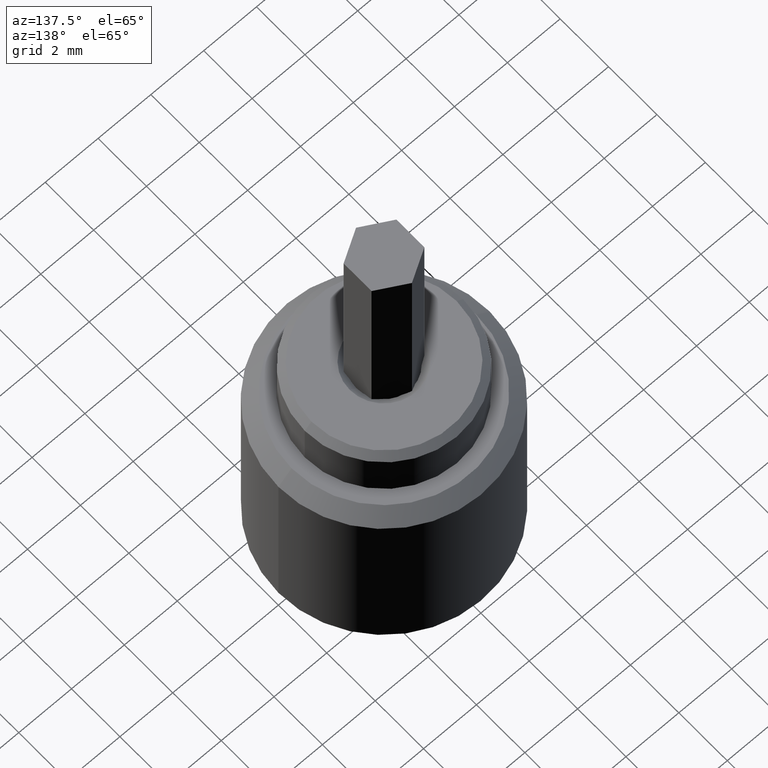
[diagram: clean part render]
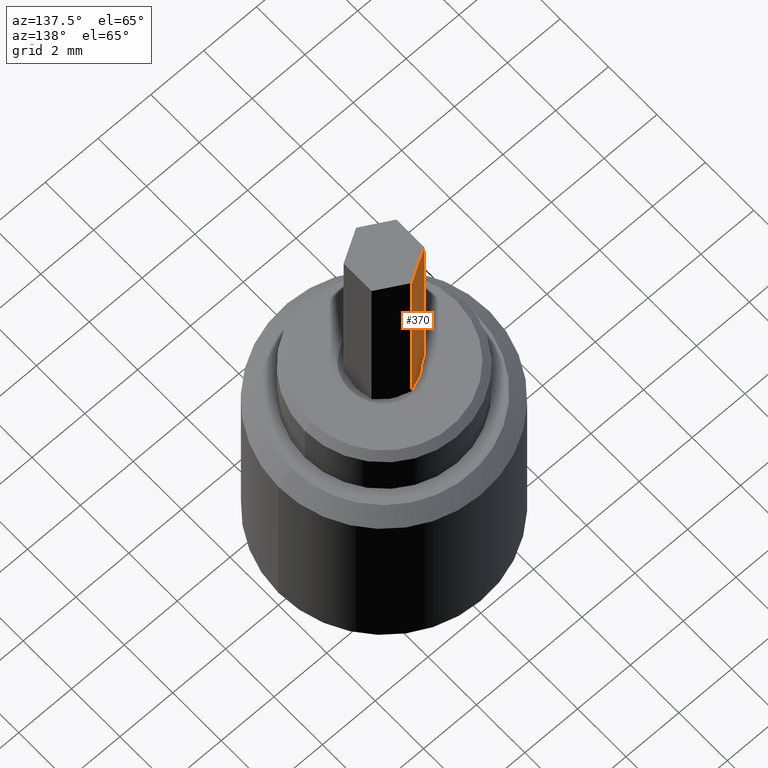
[diagram: same view with one face highlighted and labeled with its STEP entity id]
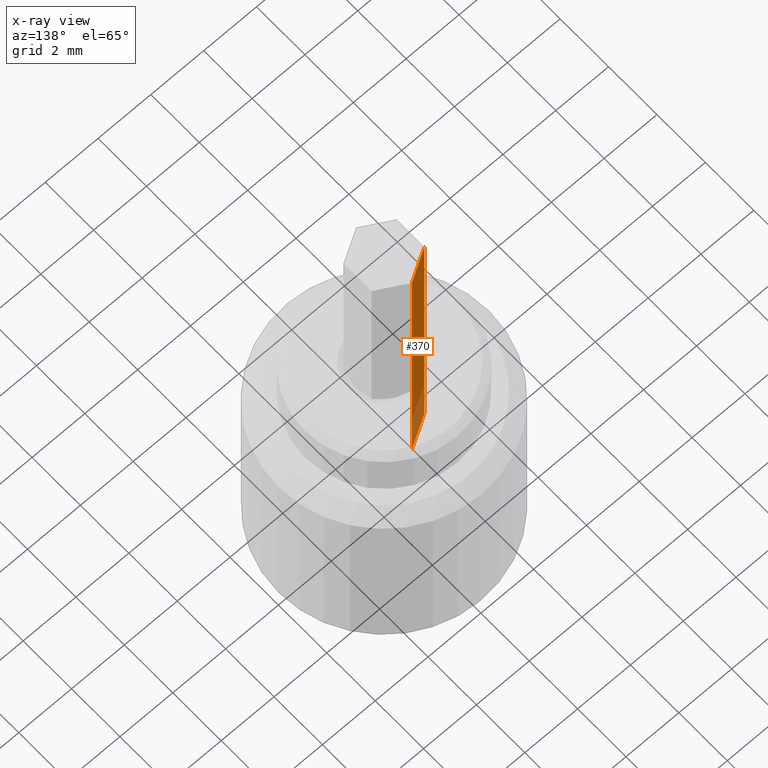
[diagram: x-ray of the same camera — body ghosted, the highlighted face saturated]
A machine part, auxiliary view. The second image highlights one B-rep face of the part: STEP entity #370.
The next image is the same camera in x-ray: the body ghosted, the highlighted face saturated — about 18% of this face is hidden behind the body in this view.
In plain terms, the highlighted planar face has unit normal (-0.5, 0.866, 0).
Its self-contained STEP definition (entity closure, byte-faithful):
#6 = EDGE_LOOP ( 'NONE', ( #213, #336, #48, #945 ) ) ;
#27 = AXIS2_PLACEMENT_3D ( 'NONE', #231, #522, #899 ) ;
#35 = DIRECTION ( 'NONE',  ( 0.000000000000000000, 0.000000000000000000, 1.000000000000000000 ) ) ;
#48 = ORIENTED_EDGE ( 'NONE', *, *, #284, .F. ) ;
#61 = VECTOR ( 'NONE', #604, 1000.000000000000000 ) ;
#71 = EDGE_CURVE ( 'NONE', #368, #183, #486, .T. ) ;
#101 = EDGE_CURVE ( 'NONE', #620, #183, #349, .T. ) ;
#104 = LINE ( 'NONE', #791, #523 ) ;
#172 = VECTOR ( 'NONE', #35, 1000.000000000000000 ) ;
#183 = VERTEX_POINT ( 'NONE', #764 ) ;
#194 = VERTEX_POINT ( 'NONE', #517 ) ;
#213 = ORIENTED_EDGE ( 'NONE', *, *, #101, .T. ) ;
#231 = CARTESIAN_POINT ( 'NONE',  ( 1.729889894353566957E-16, 1.154700538379251684, -4.000000000000000000 ) ) ;
#284 = EDGE_CURVE ( 'NONE', #194, #368, #827, .T. ) ;
#288 = FACE_OUTER_BOUND ( 'NONE', #6, .T. ) ;
#328 = CARTESIAN_POINT ( 'NONE',  ( -1.000000000000000444, 0.5773502691896260641, -4.000000000000000000 ) ) ;
#336 = ORIENTED_EDGE ( 'NONE', *, *, #71, .F. ) ;
#349 = LINE ( 'NONE', #721, #172 ) ;
#368 = VERTEX_POINT ( 'NONE', #971 ) ;
#370 = ADVANCED_FACE ( 'NONE', ( #288 ), #903, .T. ) ;
#486 = LINE ( 'NONE', #647, #621 ) ;
#492 = DIRECTION ( 'NONE',  ( -0.8660254037844388186, -0.4999999999999996114, 0.000000000000000000 ) ) ;
#517 = CARTESIAN_POINT ( 'NONE',  ( 1.729889894353566957E-16, 1.154700538379251684, -4.000000000000000000 ) ) ;
#522 = DIRECTION ( 'NONE',  ( -0.4999999999999996114, 0.8660254037844389297, 0.000000000000000000 ) ) ;
#523 = VECTOR ( 'NONE', #714, 1000.000000000000000 ) ;
#604 = DIRECTION ( 'NONE',  ( 0.000000000000000000, 0.000000000000000000, 1.000000000000000000 ) ) ;
#620 = VERTEX_POINT ( 'NONE', #328 ) ;
#621 = VECTOR ( 'NONE', #492, 1000.000000000000000 ) ;
#637 = EDGE_CURVE ( 'NONE', #194, #620, #104, .T. ) ;
#647 = CARTESIAN_POINT ( 'NONE',  ( 1.729889894353566957E-16, 1.154700538379251684, 7.000000000000000888 ) ) ;
#714 = DIRECTION ( 'NONE',  ( -0.8660254037844388186, -0.4999999999999996114, 0.000000000000000000 ) ) ;
#721 = CARTESIAN_POINT ( 'NONE',  ( -1.000000000000000444, 0.5773502691896260641, -4.000000000000000000 ) ) ;
#761 = CARTESIAN_POINT ( 'NONE',  ( 1.729889894353566957E-16, 1.154700538379251684, -4.000000000000000000 ) ) ;
#764 = CARTESIAN_POINT ( 'NONE',  ( -1.000000000000000444, 0.5773502691896260641, 7.000000000000000888 ) ) ;
#791 = CARTESIAN_POINT ( 'NONE',  ( 1.729889894353566957E-16, 1.154700538379251684, -4.000000000000000000 ) ) ;
#827 = LINE ( 'NONE', #761, #61 ) ;
#899 = DIRECTION ( 'NONE',  ( -0.8660254037844389297, -0.4999999999999996114, 0.000000000000000000 ) ) ;
#903 = PLANE ( 'NONE',  #27 ) ;
#945 = ORIENTED_EDGE ( 'NONE', *, *, #637, .T. ) ;
#971 = CARTESIAN_POINT ( 'NONE',  ( 1.729889894353566957E-16, 1.154700538379251684, 7.000000000000000888 ) ) ;